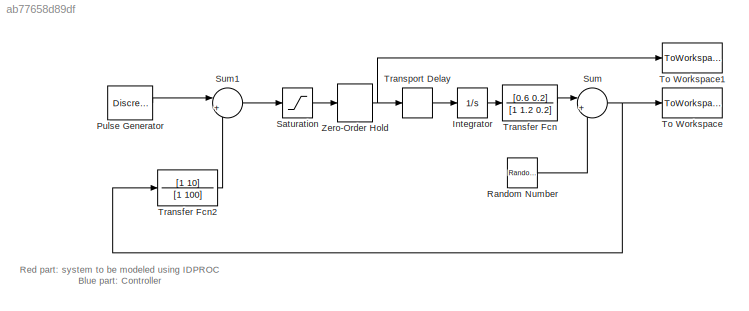
MODEL slx_ab77658d89df
KIND model
CONFIG AbsTol = auto
CONFIG FixedStep = auto
CONFIG MaxStep = auto
CONFIG MinStep = auto
CONFIG RelTol = 1e-3
CONFIG SampleTimeConstraint = Unconstrained
CONFIG Solver = ode45
CONFIG SolverMode = Auto
CONFIG SolverName = ode45
CONFIG StartTime = 0.0
CONFIG StopTime = 500
BLOCK [Integrator] Integrator
  Ports = [1, 1]
BLOCK [DiscretePulseGenerator] Pulse Generator
  Period = 200
  Ports = [0, 1]
  PulseWidth = 50
BLOCK [RandomNumber] Random Number
  SampleTime = 1
  Variance = 0.1
BLOCK [Saturate] Saturation
  InputPortMap = u0
  Ports = [1, 1]
BLOCK [Sum] Sum
  IconShape = round
  Inputs = |++
  Ports = [2, 1]
BLOCK [Sum] Sum1
  IconShape = round
  Inputs = |+-
  Ports = [2, 1]
BLOCK [ToWorkspace] To Workspace
  MaxDataPoints = inf
  Ports = [1]
  SampleTime = 1
  VariableName = y
BLOCK [ToWorkspace] To Workspace1
  MaxDataPoints = inf
  Ports = [1]
  SampleTime = 1
  VariableName = u
BLOCK [TransferFcn] Transfer Fcn
  Denominator = [1 1.2  0.2]
  Numerator = [0.6 0.2]
BLOCK [TransferFcn] Transfer Fcn2
  Denominator = [1 100]
  Numerator = [1 10]
BLOCK [TransportDelay] Transport Delay
  DelayTime = 2.2
  Ports = [1, 1]
BLOCK [ZeroOrderHold] Zero-Order Hold
ANNOTATION (root): Red part: system to be modeled using IDPROC Blue part: Controller
LINE Integrator:1 -> Transfer Fcn:1
LINE Pulse Generator:1 -> Sum1:1
LINE Random Number:1 -> Sum:2
LINE Saturation:1 -> Zero-Order Hold:1
LINE Sum1:1 -> Saturation:1
NET Sum:1 -> To Workspace:1, Transfer Fcn2:1
LINE Transfer Fcn2:1 -> Sum1:2
LINE Transfer Fcn:1 -> Sum:1
LINE Transport Delay:1 -> Integrator:1
NET Zero-Order Hold:1 -> To Workspace1:1, Transport Delay:1
note: NET lines group one-source signal fan-out (src -> all destinations, sorted); 1:1 wires keep LINE
